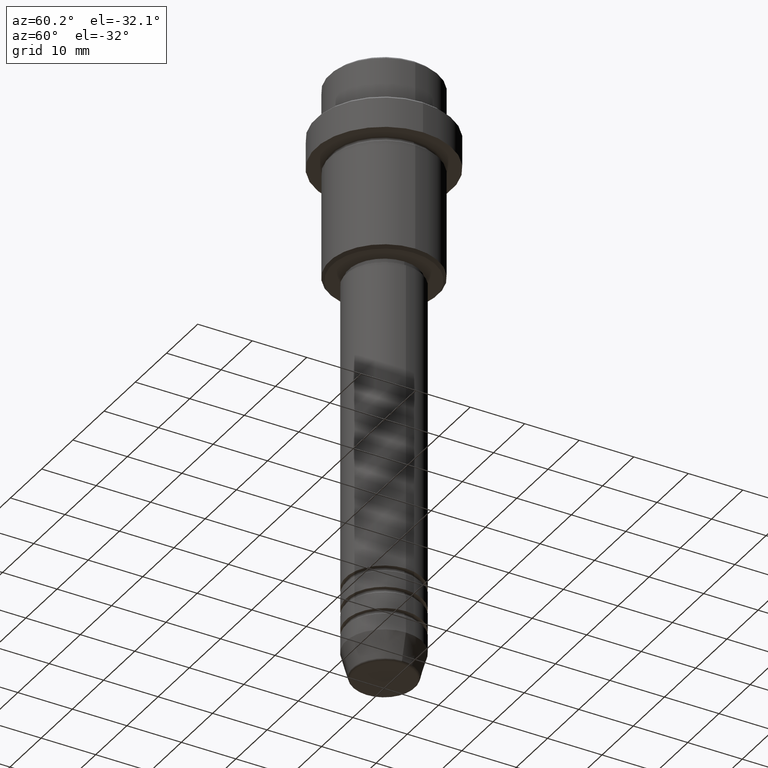
[diagram: clean part render]
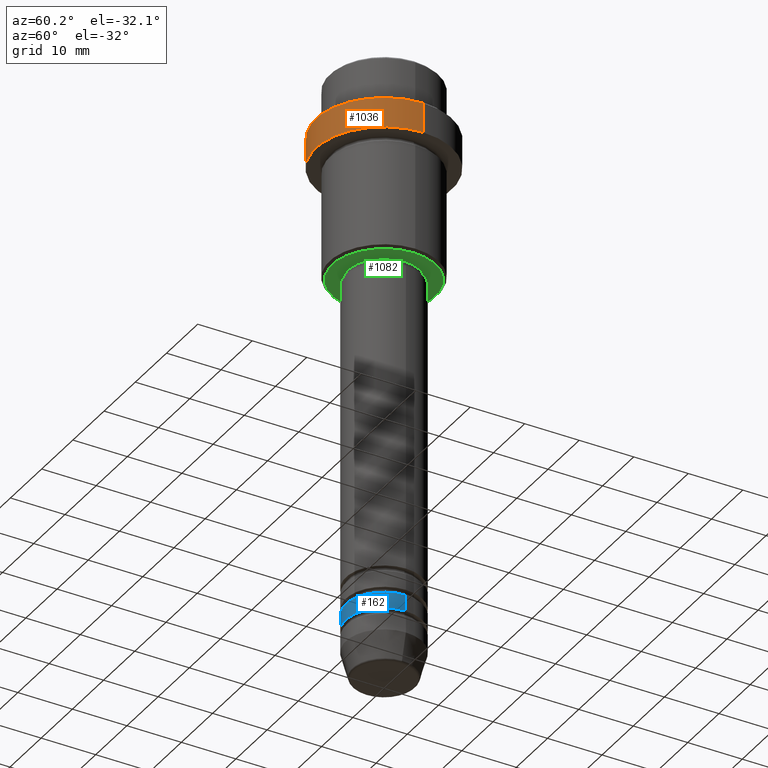
[diagram: same view with three faces highlighted in distinct colors, each labeled with its STEP entity id]
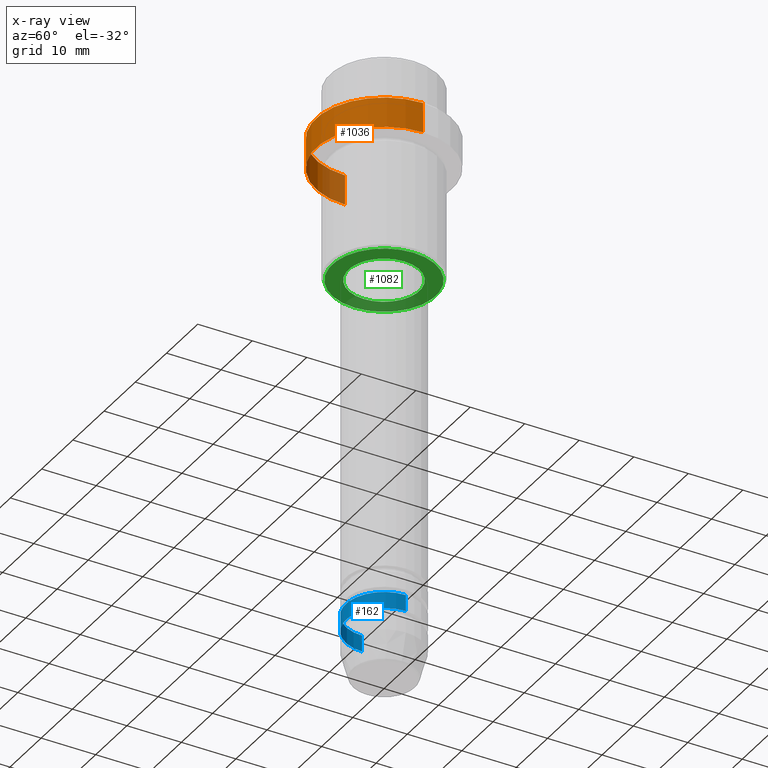
[diagram: x-ray of the same camera — body ghosted, the three highlighted faces saturated]
A machine part, auxiliary view with three faces highlighted in distinct colors.
The next image is the same camera in x-ray (body ghosted, the three faces saturated) — at least one of them is partly hidden behind the body in this view.
Their STEP definitions:

[orange] entity #1036 — the highlighted cylindrical surface (partial cylindrical patch) has radius 12.5 mm, axis along (-0, -0, 1).
#16 = DIRECTION ( 'NONE',  ( -0.000000000000000000, -0.000000000000000000, 1.000000000000000000 ) ) ;
#48 = DIRECTION ( 'NONE',  ( 1.000000000000000000, 0.000000000000000000, 0.000000000000000000 ) ) ;
#86 = DIRECTION ( 'NONE',  ( 1.000000000000000000, 0.000000000000000000, 0.000000000000000000 ) ) ;
#116 = AXIS2_PLACEMENT_3D ( 'NONE', #175, #1043, #86 ) ;
#119 = CARTESIAN_POINT ( 'NONE',  ( -12.50000000000000000, 1.530808498934191521E-15, 0.000000000000000000 ) ) ;
#143 = ORIENTED_EDGE ( 'NONE', *, *, #1350, .T. ) ;
#175 = CARTESIAN_POINT ( 'NONE',  ( 0.000000000000000000, 0.000000000000000000, -15.00000000000000178 ) ) ;
#227 = VECTOR ( 'NONE', #990, 1000.000000000000000 ) ;
#257 = VERTEX_POINT ( 'NONE', #903 ) ;
#283 = CARTESIAN_POINT ( 'NONE',  ( 12.50000000000000000, 0.000000000000000000, 0.000000000000000000 ) ) ;
#287 = CARTESIAN_POINT ( 'NONE',  ( 0.000000000000000000, 0.000000000000000000, -9.499999999999992895 ) ) ;
#293 = EDGE_CURVE ( 'NONE', #257, #791, #1087, .T. ) ;
#321 = FACE_OUTER_BOUND ( 'NONE', #1164, .T. ) ;
#476 = CIRCLE ( 'NONE', #116, 12.50000000000000000 ) ;
#564 = DIRECTION ( 'NONE',  ( -0.000000000000000000, -0.000000000000000000, 1.000000000000000000 ) ) ;
#640 = ORIENTED_EDGE ( 'NONE', *, *, #780, .T. ) ;
#648 = AXIS2_PLACEMENT_3D ( 'NONE', #1100, #16, #997 ) ;
#685 = VERTEX_POINT ( 'NONE', #920 ) ;
#757 = VECTOR ( 'NONE', #564, 1000.000000000000000 ) ;
#759 = ORIENTED_EDGE ( 'NONE', *, *, #293, .T. ) ;
#780 = EDGE_CURVE ( 'NONE', #791, #685, #993, .T. ) ;
#791 = VERTEX_POINT ( 'NONE', #1008 ) ;
#903 = CARTESIAN_POINT ( 'NONE',  ( 12.50000000000000000, 0.000000000000000000, -15.00000000000000178 ) ) ;
#920 = CARTESIAN_POINT ( 'NONE',  ( -12.50000000000000000, 1.530808498934191521E-15, -9.499999999999992895 ) ) ;
#969 = AXIS2_PLACEMENT_3D ( 'NONE', #287, #1136, #48 ) ;
#974 = EDGE_CURVE ( 'NONE', #1240, #685, #1407, .T. ) ;
#990 = DIRECTION ( 'NONE',  ( -0.000000000000000000, -0.000000000000000000, 1.000000000000000000 ) ) ;
#993 = CIRCLE ( 'NONE', #969, 12.50000000000000000 ) ;
#997 = DIRECTION ( 'NONE',  ( 1.000000000000000000, 0.000000000000000000, 0.000000000000000000 ) ) ;
#1008 = CARTESIAN_POINT ( 'NONE',  ( 12.50000000000000000, 0.000000000000000000, -9.499999999999992895 ) ) ;
#1036 = ADVANCED_FACE ( 'NONE', ( #321 ), #1108, .T. ) ;
#1043 = DIRECTION ( 'NONE',  ( -0.000000000000000000, -0.000000000000000000, 1.000000000000000000 ) ) ;
#1087 = LINE ( 'NONE', #283, #757 ) ;
#1100 = CARTESIAN_POINT ( 'NONE',  ( 0.000000000000000000, 0.000000000000000000, 0.000000000000000000 ) ) ;
#1108 = CYLINDRICAL_SURFACE ( 'NONE', #648, 12.50000000000000000 ) ;
#1136 = DIRECTION ( 'NONE',  ( 0.000000000000000000, 0.000000000000000000, -1.000000000000000000 ) ) ;
#1164 = EDGE_LOOP ( 'NONE', ( #1302, #143, #759, #640 ) ) ;
#1240 = VERTEX_POINT ( 'NONE', #1269 ) ;
#1269 = CARTESIAN_POINT ( 'NONE',  ( -12.50000000000000000, 1.530808498934191521E-15, -15.00000000000000178 ) ) ;
#1302 = ORIENTED_EDGE ( 'NONE', *, *, #974, .F. ) ;
#1350 = EDGE_CURVE ( 'NONE', #1240, #257, #476, .T. ) ;
#1407 = LINE ( 'NONE', #119, #227 ) ;

[blue] entity #162 — the highlighted cylindrical surface (partial cylindrical patch) has radius 7 mm, axis along (-0, -0, 1).
#1 = ORIENTED_EDGE ( 'NONE', *, *, #390, .T. ) ;
#3 = CARTESIAN_POINT ( 'NONE',  ( 0.000000000000000000, 0.000000000000000000, 0.000000000000000000 ) ) ;
#29 = FACE_OUTER_BOUND ( 'NONE', #1294, .T. ) ;
#144 = CARTESIAN_POINT ( 'NONE',  ( 7.000000000000000000, 0.000000000000000000, 0.000000000000000000 ) ) ;
#162 = ADVANCED_FACE ( 'NONE', ( #29 ), #905, .T. ) ;
#163 = DIRECTION ( 'NONE',  ( -0.000000000000000000, -0.000000000000000000, 1.000000000000000000 ) ) ;
#180 = LINE ( 'NONE', #505, #893 ) ;
#275 = CARTESIAN_POINT ( 'NONE',  ( -7.000000000000000000, 8.572527594031473190E-16, -98.99999999999990052 ) ) ;
#300 = CARTESIAN_POINT ( 'NONE',  ( -7.000000000000000000, 8.572527594031473190E-16, -101.9999999999998863 ) ) ;
#301 = CIRCLE ( 'NONE', #369, 7.000000000000000000 ) ;
#369 = AXIS2_PLACEMENT_3D ( 'NONE', #1236, #579, #696 ) ;
#385 = CARTESIAN_POINT ( 'NONE',  ( 7.000000000000000000, 0.000000000000000000, -101.9999999999998863 ) ) ;
#390 = EDGE_CURVE ( 'NONE', #763, #428, #544, .T. ) ;
#398 = CIRCLE ( 'NONE', #829, 7.000000000000000000 ) ;
#428 = VERTEX_POINT ( 'NONE', #902 ) ;
#505 = CARTESIAN_POINT ( 'NONE',  ( -7.000000000000000000, 8.572527594031473190E-16, 0.000000000000000000 ) ) ;
#517 = AXIS2_PLACEMENT_3D ( 'NONE', #3, #625, #1041 ) ;
#544 = LINE ( 'NONE', #144, #783 ) ;
#579 = DIRECTION ( 'NONE',  ( -0.000000000000000000, -0.000000000000000000, 1.000000000000000000 ) ) ;
#609 = ORIENTED_EDGE ( 'NONE', *, *, #1147, .F. ) ;
#625 = DIRECTION ( 'NONE',  ( -0.000000000000000000, -0.000000000000000000, 1.000000000000000000 ) ) ;
#626 = VERTEX_POINT ( 'NONE', #300 ) ;
#696 = DIRECTION ( 'NONE',  ( 1.000000000000000000, 0.000000000000000000, 0.000000000000000000 ) ) ;
#743 = EDGE_CURVE ( 'NONE', #626, #763, #398, .T. ) ;
#756 = VERTEX_POINT ( 'NONE', #275 ) ;
#763 = VERTEX_POINT ( 'NONE', #385 ) ;
#783 = VECTOR ( 'NONE', #1348, 1000.000000000000000 ) ;
#829 = AXIS2_PLACEMENT_3D ( 'NONE', #912, #163, #1363 ) ;
#893 = VECTOR ( 'NONE', #1281, 1000.000000000000000 ) ;
#902 = CARTESIAN_POINT ( 'NONE',  ( 7.000000000000000000, 0.000000000000000000, -98.99999999999990052 ) ) ;
#905 = CYLINDRICAL_SURFACE ( 'NONE', #517, 7.000000000000000000 ) ;
#910 = ORIENTED_EDGE ( 'NONE', *, *, #743, .T. ) ;
#912 = CARTESIAN_POINT ( 'NONE',  ( 0.000000000000000000, 0.000000000000000000, -101.9999999999998863 ) ) ;
#1041 = DIRECTION ( 'NONE',  ( 1.000000000000000000, 0.000000000000000000, 0.000000000000000000 ) ) ;
#1147 = EDGE_CURVE ( 'NONE', #756, #428, #301, .T. ) ;
#1211 = ORIENTED_EDGE ( 'NONE', *, *, #1358, .F. ) ;
#1236 = CARTESIAN_POINT ( 'NONE',  ( 0.000000000000000000, 0.000000000000000000, -98.99999999999990052 ) ) ;
#1281 = DIRECTION ( 'NONE',  ( -0.000000000000000000, -0.000000000000000000, 1.000000000000000000 ) ) ;
#1294 = EDGE_LOOP ( 'NONE', ( #1211, #910, #1, #609 ) ) ;
#1348 = DIRECTION ( 'NONE',  ( -0.000000000000000000, -0.000000000000000000, 1.000000000000000000 ) ) ;
#1358 = EDGE_CURVE ( 'NONE', #626, #756, #180, .T. ) ;
#1363 = DIRECTION ( 'NONE',  ( 1.000000000000000000, 0.000000000000000000, 0.000000000000000000 ) ) ;

[green] entity #1082 — the highlighted planar face has unit normal (0, 0, -1).
#14 = DIRECTION ( 'NONE',  ( -1.000000000000000000, 0.000000000000000000, 0.000000000000000000 ) ) ;
#39 = CARTESIAN_POINT ( 'NONE',  ( 0.000000000000000000, 0.000000000000000000, -36.00000000000000711 ) ) ;
#45 = CARTESIAN_POINT ( 'NONE',  ( 6.499999999999994671, 0.000000000000000000, -36.00000000000000711 ) ) ;
#106 = CARTESIAN_POINT ( 'NONE',  ( -6.499999999999994671, 7.960204194457788574E-16, -36.00000000000000711 ) ) ;
#184 = CARTESIAN_POINT ( 'NONE',  ( 0.000000000000000000, 0.000000000000000000, -36.00000000000000711 ) ) ;
#274 = ORIENTED_EDGE ( 'NONE', *, *, #767, .T. ) ;
#289 = AXIS2_PLACEMENT_3D ( 'NONE', #867, #764, #14 ) ;
#302 = DIRECTION ( 'NONE',  ( -0.000000000000000000, -0.000000000000000000, 1.000000000000000000 ) ) ;
#323 = EDGE_LOOP ( 'NONE', ( #1397, #1128 ) ) ;
#349 = EDGE_CURVE ( 'NONE', #575, #1188, #989, .T. ) ;
#439 = CIRCLE ( 'NONE', #577, 9.499999999999980460 ) ;
#470 = FACE_OUTER_BOUND ( 'NONE', #1410, .T. ) ;
#483 = EDGE_CURVE ( 'NONE', #1188, #575, #593, .T. ) ;
#508 = DIRECTION ( 'NONE',  ( -0.000000000000000000, -0.000000000000000000, 1.000000000000000000 ) ) ;
#510 = AXIS2_PLACEMENT_3D ( 'NONE', #1355, #568, #1123 ) ;
#568 = DIRECTION ( 'NONE',  ( 0.000000000000000000, 0.000000000000000000, -1.000000000000000000 ) ) ;
#575 = VERTEX_POINT ( 'NONE', #106 ) ;
#577 = AXIS2_PLACEMENT_3D ( 'NONE', #39, #1143, #1266 ) ;
#588 = EDGE_CURVE ( 'NONE', #788, #1284, #1337, .T. ) ;
#593 = CIRCLE ( 'NONE', #1131, 6.499999999999994671 ) ;
#605 = DIRECTION ( 'NONE',  ( 1.000000000000000000, 0.000000000000000000, 0.000000000000000000 ) ) ;
#621 = CARTESIAN_POINT ( 'NONE',  ( -9.499999999999980460, 1.194030629168668286E-15, -36.00000000000000711 ) ) ;
#764 = DIRECTION ( 'NONE',  ( 0.000000000000000000, 0.000000000000000000, -1.000000000000000000 ) ) ;
#767 = EDGE_CURVE ( 'NONE', #1284, #788, #439, .T. ) ;
#788 = VERTEX_POINT ( 'NONE', #1152 ) ;
#867 = CARTESIAN_POINT ( 'NONE',  ( 0.000000000000000000, 0.000000000000000000, -36.00000000000000711 ) ) ;
#909 = FACE_BOUND ( 'NONE', #323, .T. ) ;
#949 = ORIENTED_EDGE ( 'NONE', *, *, #588, .T. ) ;
#989 = CIRCLE ( 'NONE', #1056, 6.499999999999994671 ) ;
#1056 = AXIS2_PLACEMENT_3D ( 'NONE', #1062, #508, #1396 ) ;
#1062 = CARTESIAN_POINT ( 'NONE',  ( 0.000000000000000000, 0.000000000000000000, -36.00000000000000711 ) ) ;
#1082 = ADVANCED_FACE ( 'NONE', ( #470, #909 ), #1245, .T. ) ;
#1123 = DIRECTION ( 'NONE',  ( -1.000000000000000000, 0.000000000000000000, -0.000000000000000000 ) ) ;
#1128 = ORIENTED_EDGE ( 'NONE', *, *, #349, .T. ) ;
#1131 = AXIS2_PLACEMENT_3D ( 'NONE', #184, #302, #605 ) ;
#1143 = DIRECTION ( 'NONE',  ( 0.000000000000000000, 0.000000000000000000, -1.000000000000000000 ) ) ;
#1152 = CARTESIAN_POINT ( 'NONE',  ( 9.499999999999980460, 0.000000000000000000, -36.00000000000000711 ) ) ;
#1188 = VERTEX_POINT ( 'NONE', #45 ) ;
#1245 = PLANE ( 'NONE',  #510 ) ;
#1266 = DIRECTION ( 'NONE',  ( -1.000000000000000000, 0.000000000000000000, 0.000000000000000000 ) ) ;
#1284 = VERTEX_POINT ( 'NONE', #621 ) ;
#1337 = CIRCLE ( 'NONE', #289, 9.499999999999980460 ) ;
#1355 = CARTESIAN_POINT ( 'NONE',  ( 0.000000000000000000, 10.00000000000000000, -36.00000000000000711 ) ) ;
#1396 = DIRECTION ( 'NONE',  ( 1.000000000000000000, 0.000000000000000000, 0.000000000000000000 ) ) ;
#1397 = ORIENTED_EDGE ( 'NONE', *, *, #483, .T. ) ;
#1410 = EDGE_LOOP ( 'NONE', ( #949, #274 ) ) ;